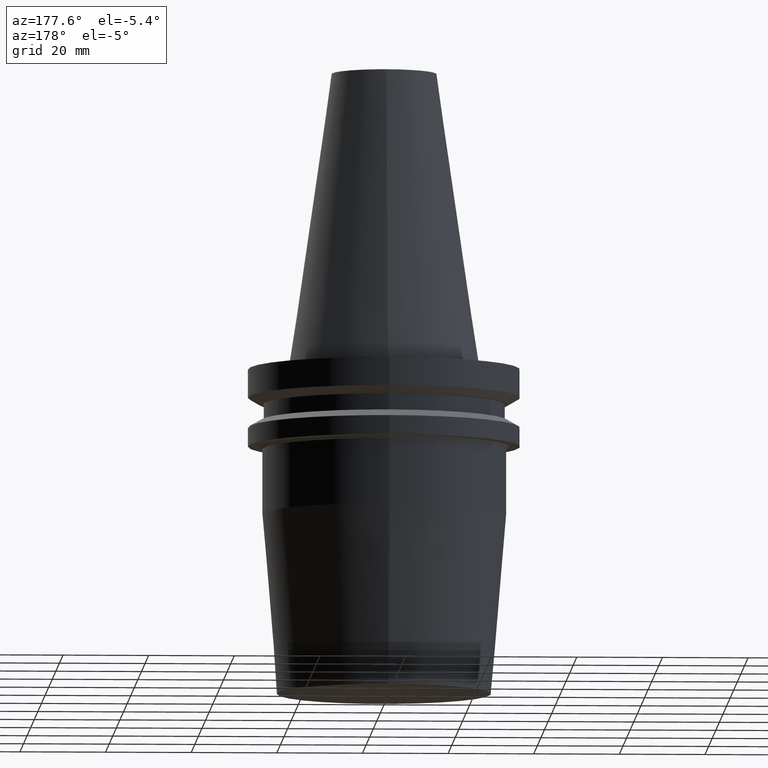
[diagram: clean part render]
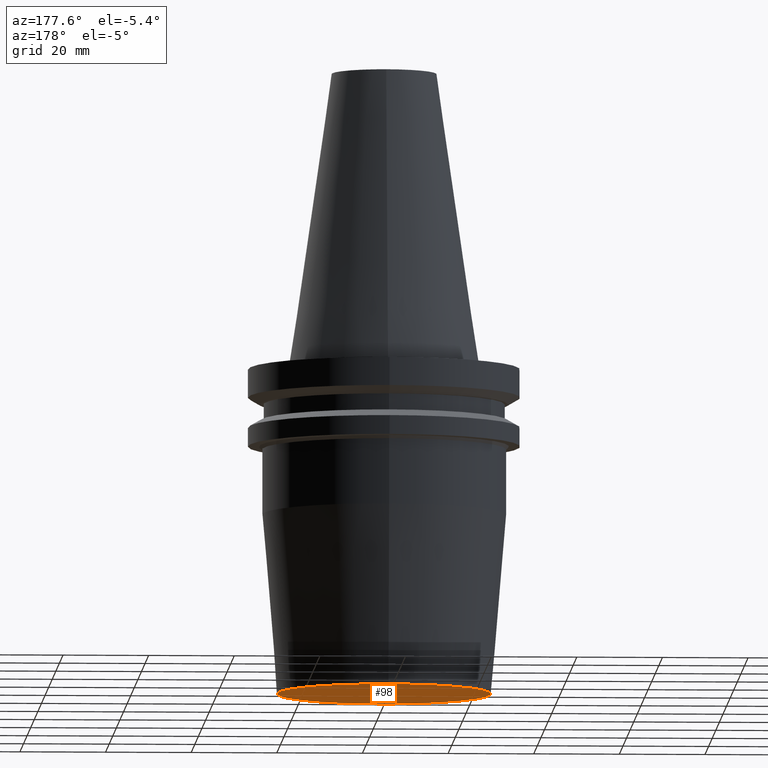
[diagram: same view with one face highlighted and labeled with its STEP entity id]
A machine part, auxiliary view. The second image highlights one B-rep face of the part: STEP entity #98.
In plain terms, the highlighted planar face has unit normal (0, 0, -1).
Its self-contained STEP definition (entity closure, byte-faithful):
#98=ADVANCED_FACE('Unnamed[1]',(#217),#218,.T.);
#110=EDGE_CURVE('Unnamed[1]',#236,#236,#237,.T.);
#217=FACE_OUTER_BOUND('',#365,.T.);
#218=PLANE('',#366);
#236=VERTEX_POINT('',#389);
#237=CIRCLE('',#390,25.0);
#365=EDGE_LOOP('',(#512));
#366=AXIS2_PLACEMENT_3D('',#513,#514,#515);
#389=CARTESIAN_POINT('',(4.71489017671733E-015,24.9999999999999,-77.0000000000003));
#390=AXIS2_PLACEMENT_3D('',#534,#535,#536);
#512=ORIENTED_EDGE('',*,*,#110,.T.);
#513=CARTESIAN_POINT('',(4.71489017671733E-015,12.5,-77.0000000000003));
#514=DIRECTION('',(6.12323399573677E-017,1.2593330571309E-015,-1.0));
#515=DIRECTION('',(-8.19390626045592E-032,1.0,1.2593330571309E-015));
#534=CARTESIAN_POINT('',(4.71489017671733E-015,-2.64250583562428E-014,-77.0000000000003));
#535=DIRECTION('',(6.12323399573677E-017,-1.22696610407853E-016,-1.0));
#536=DIRECTION('',(2.68584782934099E-033,1.0,-1.22696610407853E-016));